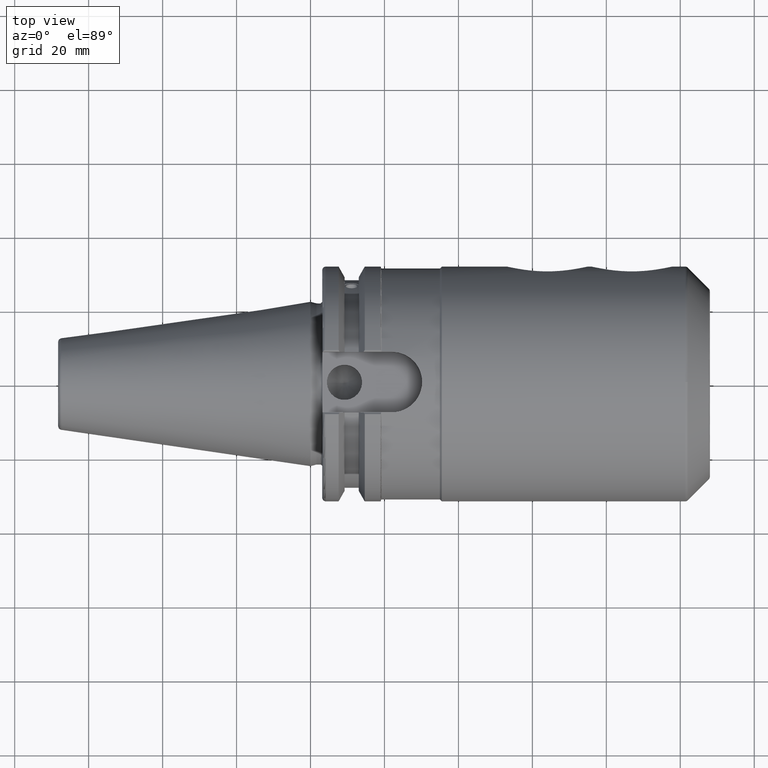
[diagram: clean part render]
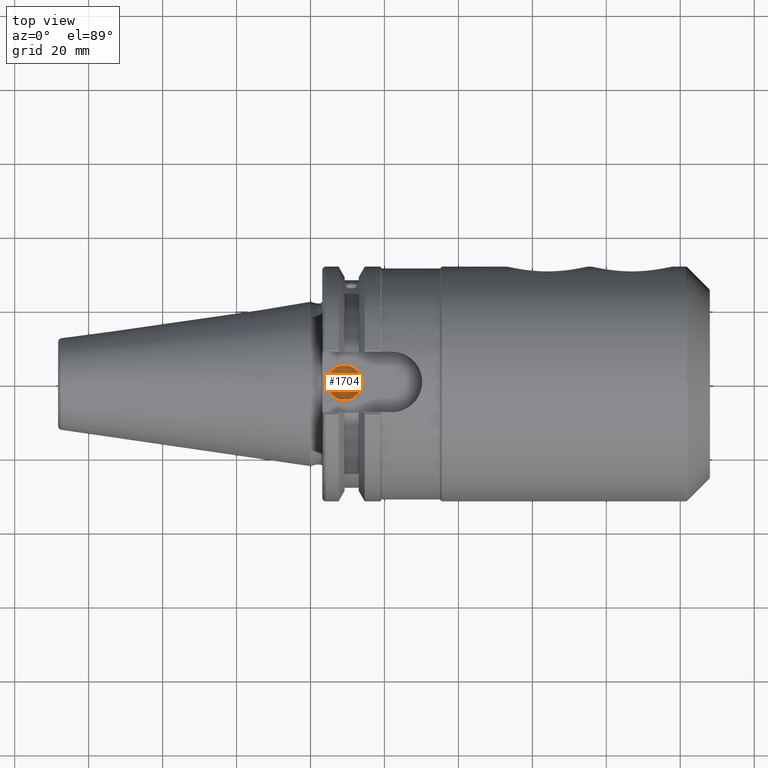
[diagram: same view with one face highlighted and labeled with its STEP entity id]
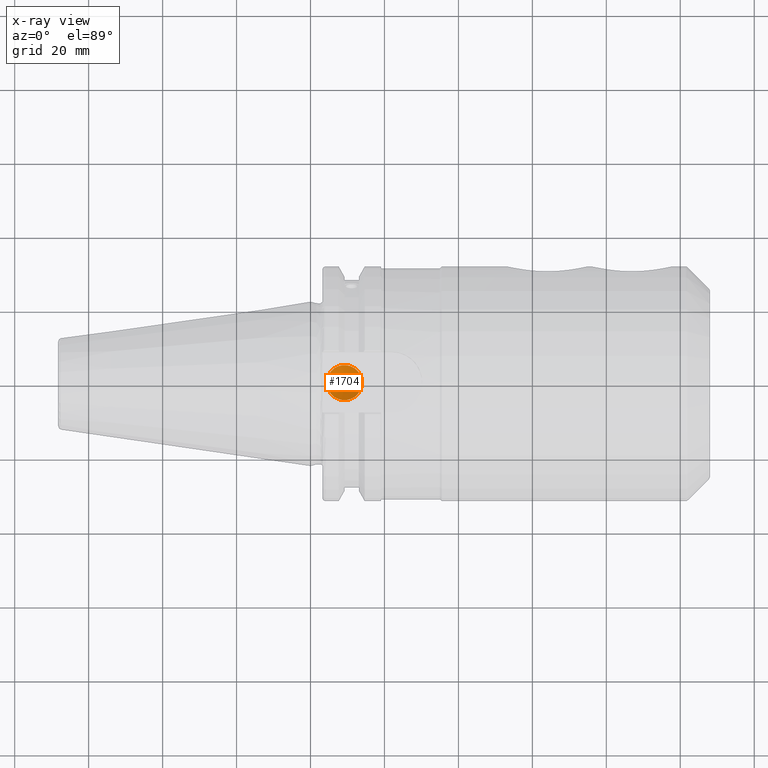
[diagram: x-ray of the same camera — body ghosted, the highlighted face saturated]
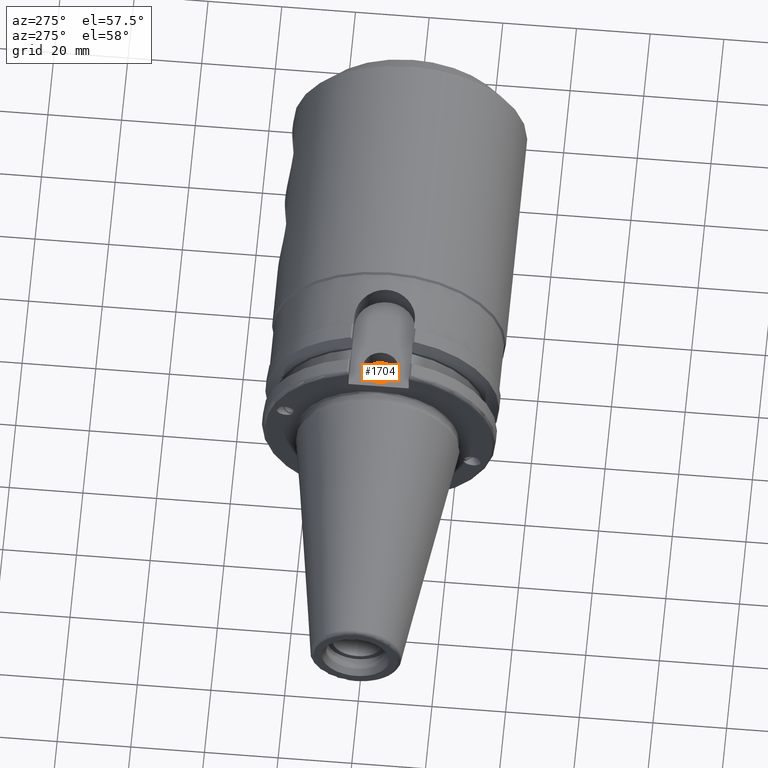
[diagram: same view with one face highlighted and labeled with its STEP entity id]
A machine part, top view. The second image highlights one B-rep face of the part: STEP entity #1704.
The next image is the same camera in x-ray: the body ghosted, the highlighted face saturated — about 0% of this face is hidden behind the body in this view.
A second angle (auxiliary view) of the same face is appended — the face is thin or edge-on in the first view.
In plain terms, the highlighted conical surface has half-angle 59 deg.
Its self-contained STEP definition (entity closure, byte-faithful):
#223=FACE_OUTER_BOUND('',#333,.T.);
#333=EDGE_LOOP('',(#1544,#1545,#1546));
#474=CIRCLE('',#1913,4.7625);
#569=LINE('',#3488,#659);
#659=VECTOR('',#2368,2.38125);
#831=VERTEX_POINT('',#3485);
#832=VERTEX_POINT('',#3487);
#1079=EDGE_CURVE('',#831,#831,#474,.T.);
#1080=EDGE_CURVE('',#831,#832,#569,.T.);
#1544=ORIENTED_EDGE('',*,*,#1079,.T.);
#1545=ORIENTED_EDGE('',*,*,#1080,.T.);
#1546=ORIENTED_EDGE('',*,*,#1080,.F.);
#1621=CONICAL_SURFACE('',#1912,2.38125,1.02974425867665);
#1704=ADVANCED_FACE('',(#223),#1621,.F.);
#1912=AXIS2_PLACEMENT_3D('',#3484,#2364,#2365);
#1913=AXIS2_PLACEMENT_3D('',#3486,#2366,#2367);
#2364=DIRECTION('center_axis',(0.,0.,1.));
#2365=DIRECTION('ref_axis',(1.,0.,0.));
#2366=DIRECTION('center_axis',(0.,0.,1.));
#2367=DIRECTION('ref_axis',(1.,0.,0.));
#2368=DIRECTION('',(0.857167300702112,1.04972719113862E-16,-0.515038074910054));
#3484=CARTESIAN_POINT('Origin',(9.175,0.,18.5692006509406));
#3485=CARTESIAN_POINT('',(4.4125,-5.83238038093927E-16,20.));
#3486=CARTESIAN_POINT('Origin',(9.175,0.,20.));
#3487=CARTESIAN_POINT('',(9.175,0.,17.1384013018812));
#3488=CARTESIAN_POINT('',(6.79375,-2.91619019046964E-16,18.5692006509406));